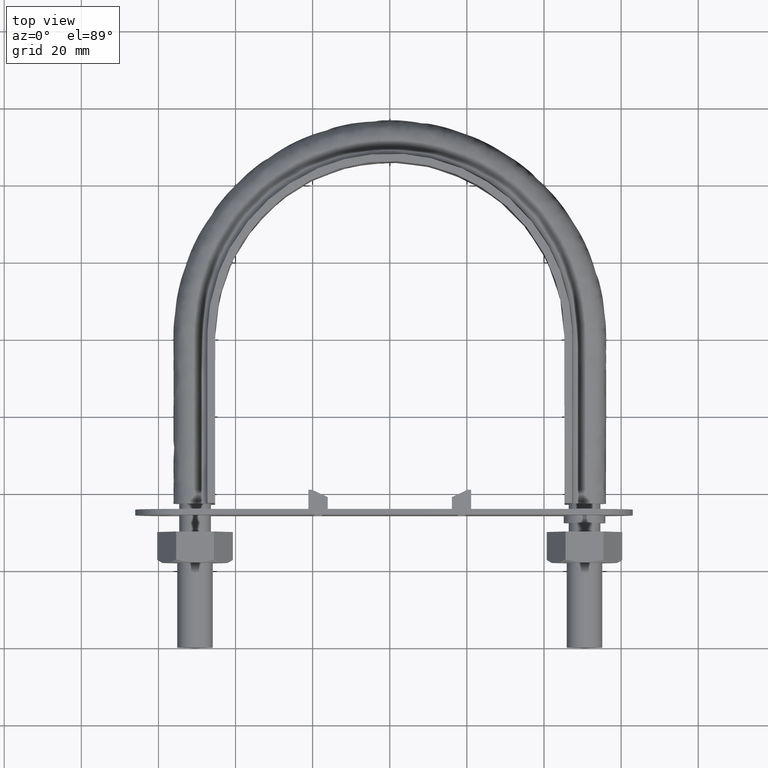
[diagram: clean part render]
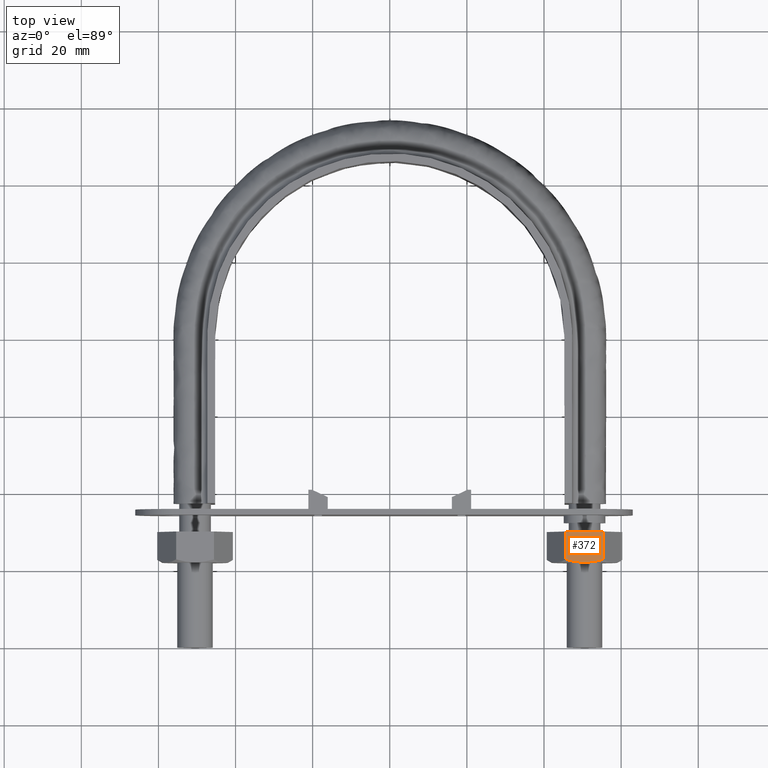
[diagram: same view with one face highlighted and labeled with its STEP entity id]
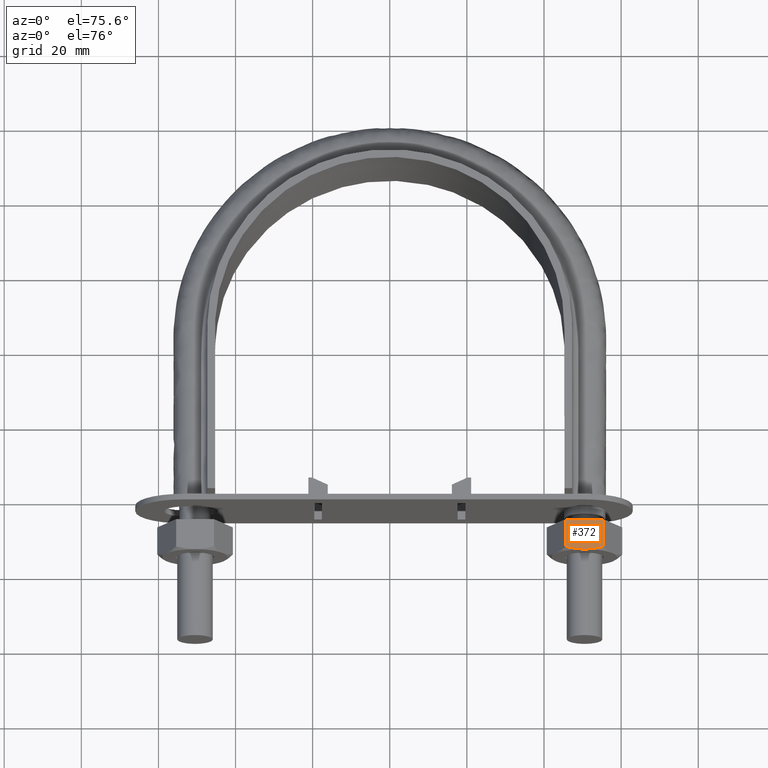
[diagram: same view with one face highlighted and labeled with its STEP entity id]
A machine part, top view. The second image highlights one B-rep face of the part: STEP entity #372.
A second angle (auxiliary view) of the same face is appended — the face is thin or edge-on in the first view.
In plain terms, the highlighted planar face has unit normal (-0, 0, -1).
Its self-contained STEP definition (entity closure, byte-faithful):
#372 = ADVANCED_FACE( '', ( #619 ), #620, .F. );
#619 = FACE_OUTER_BOUND( '', #1690, .T. );
#620 = PLANE( '', #1691 );
#1690 = EDGE_LOOP( '', ( #2482, #2483, #2484, #2485, #2486 ) );
#1691 = AXIS2_PLACEMENT_3D( '', #2487, #2488, #2489 );
#2482 = ORIENTED_EDGE( '', *, *, #2735, .F. );
#2483 = ORIENTED_EDGE( '', *, *, #2768, .F. );
#2484 = ORIENTED_EDGE( '', *, *, #2769, .F. );
#2485 = ORIENTED_EDGE( '', *, *, #2742, .F. );
#2486 = ORIENTED_EDGE( '', *, *, #2762, .F. );
#2487 = CARTESIAN_POINT( '', ( 45.5925227123900, 30.0000000000020, 8.50000000028563 ) );
#2488 = DIRECTION( '', ( -5.88272208723665E-011, 6.12303177055269E-017, -1.00000000000000 ) );
#2489 = DIRECTION( '', ( -1.00000000000000, 2.44921270760873E-016, 5.88272208723665E-011 ) );
#2735 = EDGE_CURVE( '', #3098, #3111, #3112, .T. );
#2742 = EDGE_CURVE( '', #3122, #3124, #3125, .T. );
#2762 = EDGE_CURVE( '', #3111, #3122, #3155, .T. );
#2768 = EDGE_CURVE( '', #3163, #3098, #3164, .T. );
#2769 = EDGE_CURVE( '', #3124, #3163, #3165, .F. );
#3098 = VERTEX_POINT( '', #3920 );
#3111 = VERTEX_POINT( '', #3941 );
#3112 = B_SPLINE_CURVE_WITH_KNOTS( '', 3, ( #3942, #3943, #3944, #3945, #3946, #3947, #3948, #3949 ), .UNSPECIFIED., .F., .F., ( 4, 2, 2, 4 ), ( 0.00493529902949255, 0.00616408349151632, 0.00739286795354008, 0.00985043687758761 ), .UNSPECIFIED. );
#3122 = VERTEX_POINT( '', #3960 );
#3124 = VERTEX_POINT( '', #3962 );
#3125 = LINE( '', #3963, #3964 );
#3155 = LINE( '', #4032, #4033 );
#3163 = VERTEX_POINT( '', #4053 );
#3164 = B_SPLINE_CURVE_WITH_KNOTS( '', 3, ( #4054, #4055, #4056, #4057, #4058, #4059 ), .UNSPECIFIED., .F., .F., ( 4, 2, 4 ), ( 7.17194508345533E-007, 0.00246800811200045, 0.00493529902949255 ), .UNSPECIFIED. );
#3165 = LINE( '', #4060, #4061 );
#3920 = CARTESIAN_POINT( '', ( 50.5000000005000, 22.0000000000020, 8.49999999999694 ) );
#3941 = CARTESIAN_POINT( '', ( 45.6225006411989, 22.7505553499485, 8.50000000028386 ) );
#3942 = CARTESIAN_POINT( '', ( 50.5000000005001, 22.0000000000014, 8.49999999999693 ) );
#3943 = CARTESIAN_POINT( '', ( 50.0862903727493, 22.0000000000014, 8.50000000002127 ) );
#3944 = CARTESIAN_POINT( '', ( 49.6705131788978, 22.0177112141234, 8.50000000004573 ) );
#3945 = CARTESIAN_POINT( '', ( 48.8480009988429, 22.0863020976812, 8.50000000009412 ) );
#3946 = CARTESIAN_POINT( '', ( 48.4394788825038, 22.1371114863353, 8.50000000011815 ) );
#3947 = CARTESIAN_POINT( '', ( 47.2211323157203, 22.3331491064668, 8.50000000018982 ) );
#3948 = CARTESIAN_POINT( '', ( 46.4185008692941, 22.5218250443861, 8.50000000023704 ) );
#3949 = CARTESIAN_POINT( '', ( 45.6225006411987, 22.7505553499476, 8.50000000028386 ) );
#3960 = CARTESIAN_POINT( '', ( 45.6225006411989, 30.0000000000020, 8.50000000028386 ) );
#3962 = CARTESIAN_POINT( '', ( 55.3774993598012, 30.0000000000020, 8.49999999971000 ) );
#3963 = CARTESIAN_POINT( '', ( 55.4000000004983, 30.0000000000020, 8.49999999970868 ) );
#3964 = VECTOR( '', #4380, 999.999999999880 );
#4032 = CARTESIAN_POINT( '', ( 45.6225006411989, 30.0000000000020, 8.50000000028387 ) );
#4033 = VECTOR( '', #4405, 1000.00000000024 );
#4053 = CARTESIAN_POINT( '', ( 55.3774993598012, 22.7505553499485, 8.49999999971001 ) );
#4054 = CARTESIAN_POINT( '', ( 55.3774993598013, 22.7505553499475, 8.49999999971000 ) );
#4055 = CARTESIAN_POINT( '', ( 54.5793958262575, 22.5212206605167, 8.49999999975696 ) );
#4056 = CARTESIAN_POINT( '', ( 53.7755276398722, 22.3324529479817, 8.49999999980424 ) );
#4057 = CARTESIAN_POINT( '', ( 52.1512367171357, 22.0714150925773, 8.49999999989980 ) );
#4058 = CARTESIAN_POINT( '', ( 51.3306924763371, 22.0000000000014, 8.49999999994807 ) );
#4059 = CARTESIAN_POINT( '', ( 50.5000000005001, 22.0000000000014, 8.49999999999693 ) );
#4060 = CARTESIAN_POINT( '', ( 55.3774993598012, 30.0000000000020, 8.49999999971001 ) );
#4061 = VECTOR( '', #4411, 1000.00000000024 );
#4380 = DIRECTION( '', ( 1.00000000000000, -2.44921270760873E-016, -5.88272208723666E-011 ) );
#4405 = DIRECTION( '', ( 2.44921270764475E-016, 1.00000000000000, 6.12303176911189E-017 ) );
#4411 = DIRECTION( '', ( 2.44921270764475E-016, 1.00000000000000, 6.12303176911189E-017 ) );